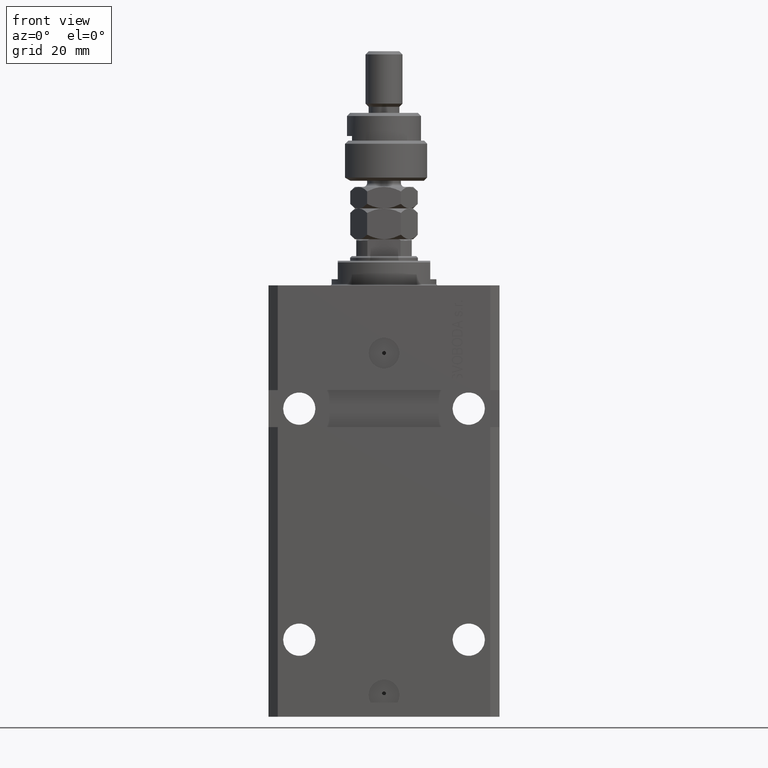
[diagram: clean part render]
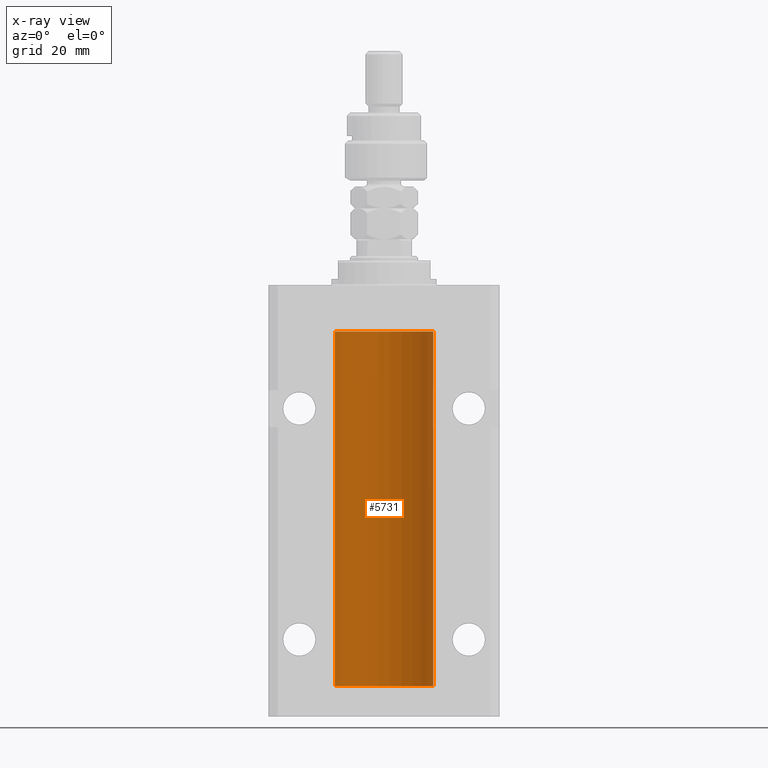
[diagram: x-ray — body ghosted, one internal face saturated and labeled with its STEP entity id]
A machine part, front view, then the same camera in x-ray: the body is ghosted and one INTERNAL B-rep face — a face not visible from any outside direction — is saturated and labeled: STEP entity #5731.
In plain terms, the highlighted cylindrical surface (partial cylindrical patch) has radius 16 mm, axis along (0, 0, 1).
Its self-contained STEP definition (entity closure, byte-faithful):
#670 = EDGE_CURVE ( 'NONE', #8681, #39952, #28581, .T. ) ;
#1472 = CARTESIAN_POINT ( 'NONE',  ( -15.98779057735153941, 0.6249419637998100407, -21.83670145863507273 ) ) ;
#1968 = CARTESIAN_POINT ( 'NONE',  ( -16.00000000000000000, 0.1631714642025800244, -22.62499999999985789 ) ) ;
#2220 = CARTESIAN_POINT ( 'NONE',  ( -15.99228023727724413, 0.5003781296993413674, -22.38347829554236057 ) ) ;
#2885 = CARTESIAN_POINT ( 'NONE',  ( -15.99228023727723702, 0.5003781296993445871, -128.3834782955424032 ) ) ;
#3008 = FACE_OUTER_BOUND ( 'NONE', #37050, .T. ) ;
#5253 = DIRECTION ( 'NONE',  ( -0.000000000000000000, -0.000000000000000000, 1.000000000000000000 ) ) ;
#5731 = ADVANCED_FACE ( 'NONE', ( #3008 ), #43566, .F. ) ;
#5789 = CARTESIAN_POINT ( 'NONE',  ( -15.99548640841683067, 0.3843705577988847377, -21.50046628527008608 ) ) ;
#6029 = CARTESIAN_POINT ( 'NONE',  ( -15.99707730059171240, 0.3150375992092407373, -21.45402333202571654 ) ) ;
#6205 = DIRECTION ( 'NONE',  ( -0.000000000000000000, -0.000000000000000000, 1.000000000000000000 ) ) ;
#6241 = ORIENTED_EDGE ( 'NONE', *, *, #21379, .T. ) ;
#6279 = CARTESIAN_POINT ( 'NONE',  ( -16.00000000000000711, 0.08259886010189904093, -21.37500000000000000 ) ) ;
#6322 = AXIS2_PLACEMENT_3D ( 'NONE', #10969, #13837, #29309 ) ;
#6402 = VERTEX_POINT ( 'NONE', #9509 ) ;
#7376 = ORIENTED_EDGE ( 'NONE', *, *, #670, .T. ) ;
#8055 = LINE ( 'NONE', #31898, #10241 ) ;
#8396 = ORIENTED_EDGE ( 'NONE', *, *, #12604, .F. ) ;
#8549 = CARTESIAN_POINT ( 'NONE',  ( -16.00000000000000000, 1.959434878635765131E-15, -130.0999999999999943 ) ) ;
#8681 = VERTEX_POINT ( 'NONE', #49082 ) ;
#9340 = CARTESIAN_POINT ( 'NONE',  ( -16.00000000000000000, 1.643679961284177128E-16, -21.37499999999999645 ) ) ;
#9509 = CARTESIAN_POINT ( 'NONE',  ( 16.00000000000000000, 0.000000000000000000, -130.0999999999999943 ) ) ;
#10241 = VECTOR ( 'NONE', #43063, 1000.000000000000000 ) ;
#10252 = CARTESIAN_POINT ( 'NONE',  ( -15.98844267028591482, 0.6088369347963276113, -128.1632473502432674 ) ) ;
#10628 = VERTEX_POINT ( 'NONE', #8549 ) ;
#10969 = CARTESIAN_POINT ( 'NONE',  ( 0.000000000000000000, 0.000000000000000000, -130.0999999999999943 ) ) ;
#11655 = ORIENTED_EDGE ( 'NONE', *, *, #32061, .F. ) ;
#12604 = EDGE_CURVE ( 'NONE', #22892, #39952, #20129, .T. ) ;
#13400 = CARTESIAN_POINT ( 'NONE',  ( -15.99070426498503217, 0.5462220647145618058, -22.31460064614143590 ) ) ;
#13837 = DIRECTION ( 'NONE',  ( 0.000000000000000000, 0.000000000000000000, 1.000000000000000000 ) ) ;
#14290 = ORIENTED_EDGE ( 'NONE', *, *, #23144, .F. ) ;
#14308 = CARTESIAN_POINT ( 'NONE',  ( -15.99070426498503217, 0.5462220647145575869, -128.3146006461414288 ) ) ;
#14566 = CARTESIAN_POINT ( 'NONE',  ( -15.99707730059171240, 0.3150375992092247501, -127.4540233320256561 ) ) ;
#14889 = VECTOR ( 'NONE', #28458, 1000.000000000000000 ) ;
#16707 = CARTESIAN_POINT ( 'NONE',  ( -15.98778717651346071, 0.6250289588122140971, -22.08131585687052478 ) ) ;
#17207 = CARTESIAN_POINT ( 'NONE',  ( -15.99070653155267685, 0.5573233280232986475, -21.67348148680506625 ) ) ;
#17695 = CARTESIAN_POINT ( 'NONE',  ( -15.99934216141748244, 0.1636497843296417787, -21.39126528029306229 ) ) ;
#18107 = CARTESIAN_POINT ( 'NONE',  ( -15.98778717651346604, 0.6250289588122058815, -128.0813158568705603 ) ) ;
#18364 = CARTESIAN_POINT ( 'NONE',  ( -16.00000000000013145, 3.685127464164956467E-13, -128.6250000000034390 ) ) ;
#20129 = LINE ( 'NONE', #24184, #48373 ) ;
#20164 = DIRECTION ( 'NONE',  ( 0.000000000000000000, 0.000000000000000000, 1.000000000000000000 ) ) ;
#20241 = VERTEX_POINT ( 'NONE', #43240 ) ;
#20435 = EDGE_CURVE ( 'NONE', #25460, #32603, #41831, .T. ) ;
#20599 = CARTESIAN_POINT ( 'NONE',  ( -16.00000000000000000, 1.959434878635765131E-15, -130.0999999999999943 ) ) ;
#21261 = CARTESIAN_POINT ( 'NONE',  ( -16.00000000000013145, 3.685127038166941002E-13, -22.62500000000341771 ) ) ;
#21379 = EDGE_CURVE ( 'NONE', #6402, #8681, #45000, .T. ) ;
#21723 = ORIENTED_EDGE ( 'NONE', *, *, #35351, .F. ) ;
#21758 = CARTESIAN_POINT ( 'NONE',  ( -15.99711699979842017, 0.3253759916140657737, -22.55856151623175521 ) ) ;
#21933 = CARTESIAN_POINT ( 'NONE',  ( 16.00000000000000000, 0.000000000000000000, -130.0999999999999943 ) ) ;
#22175 = CARTESIAN_POINT ( 'NONE',  ( -16.00000000000000000, -1.314639473218082033E-14, -127.3749999999999858 ) ) ;
#22892 = VERTEX_POINT ( 'NONE', #45226 ) ;
#23144 = EDGE_CURVE ( 'NONE', #10628, #32603, #28707, .T. ) ;
#24184 = CARTESIAN_POINT ( 'NONE',  ( -16.00000000000000000, 1.959434878635765131E-15, -130.0999999999999943 ) ) ;
#24217 = DIRECTION ( 'NONE',  ( 1.000000000000000000, 0.000000000000000000, 0.000000000000000000 ) ) ;
#25460 = VERTEX_POINT ( 'NONE', #41032 ) ;
#25497 = B_SPLINE_CURVE_WITH_KNOTS ( 'NONE', 3,
 ( #9340, #6279, #17695, #6029, #5789, #17207, #1472, #16707, #36217, #13400, #2220, #21758, #1968, #21261 ),
 .UNSPECIFIED., .F., .F.,
 ( 4, 2, 2, 2, 2, 2, 4 ),
 ( 1.597328219370744179E-19, 0.0002442776652680942405, 0.0004885553305361882643, 0.0009771106610723839011, 0.001221388326340481665, 0.001465665991608579430, 0.001954221322144767369 ),
 .UNSPECIFIED. ) ;
#27319 = CARTESIAN_POINT ( 'NONE',  ( 0.000000000000000000, 0.000000000000000000, -130.0999999999999943 ) ) ;
#27728 = ORIENTED_EDGE ( 'NONE', *, *, #20435, .T. ) ;
#28458 = DIRECTION ( 'NONE',  ( -0.000000000000000000, -0.000000000000000000, 1.000000000000000000 ) ) ;
#28581 = CIRCLE ( 'NONE', #30213, 16.00000000000000000 ) ;
#28707 = LINE ( 'NONE', #20599, #14889 ) ;
#29309 = DIRECTION ( 'NONE',  ( 1.000000000000000000, 0.000000000000000000, 0.000000000000000000 ) ) ;
#29442 = VECTOR ( 'NONE', #6205, 1000.000000000000000 ) ;
#30213 = AXIS2_PLACEMENT_3D ( 'NONE', #34870, #20164, #24217 ) ;
#30531 = CARTESIAN_POINT ( 'NONE',  ( -15.99070653155267685, 0.5573233280232815501, -127.6734814868050449 ) ) ;
#31898 = CARTESIAN_POINT ( 'NONE',  ( -16.00000000000000000, 1.959434878635765131E-15, -130.0999999999999943 ) ) ;
#32061 = EDGE_CURVE ( 'NONE', #25460, #20241, #8055, .T. ) ;
#32470 = CARTESIAN_POINT ( 'NONE',  ( -16.00000000000013145, 3.685127464164956467E-13, -128.6250000000034390 ) ) ;
#32603 = VERTEX_POINT ( 'NONE', #32470 ) ;
#32640 = CARTESIAN_POINT ( 'NONE',  ( -16.00000000000000000, 1.959434878635765131E-15, -15.00000000000000000 ) ) ;
#34320 = CARTESIAN_POINT ( 'NONE',  ( -15.99934216141748244, 0.1636497843296232380, -127.3912652802930694 ) ) ;
#34870 = CARTESIAN_POINT ( 'NONE',  ( 0.000000000000000000, 0.000000000000000000, -15.00000000000000000 ) ) ;
#35170 = DIRECTION ( 'NONE',  ( 1.000000000000000000, 0.000000000000000000, 0.000000000000000000 ) ) ;
#35351 = EDGE_CURVE ( 'NONE', #6402, #10628, #38714, .T. ) ;
#35791 = EDGE_CURVE ( 'NONE', #22892, #20241, #25497, .T. ) ;
#36084 = ORIENTED_EDGE ( 'NONE', *, *, #35791, .T. ) ;
#36217 = CARTESIAN_POINT ( 'NONE',  ( -15.98844267028591482, 0.6088369347963316081, -22.16324735024328518 ) ) ;
#37050 = EDGE_LOOP ( 'NONE', ( #14290, #21723, #6241, #7376, #8396, #36084, #11655, #27728 ) ) ;
#37625 = CARTESIAN_POINT ( 'NONE',  ( -15.98779057735154296, 0.6249419637998029353, -127.8367014586350763 ) ) ;
#38714 = CIRCLE ( 'NONE', #6322, 16.00000000000000000 ) ;
#39952 = VERTEX_POINT ( 'NONE', #32640 ) ;
#41032 = CARTESIAN_POINT ( 'NONE',  ( -16.00000000000000000, -1.314639473218082033E-14, -127.3749999999999858 ) ) ;
#41199 = CARTESIAN_POINT ( 'NONE',  ( -15.99999999999999289, 0.1631714642025817730, -128.6249999999999147 ) ) ;
#41456 = CARTESIAN_POINT ( 'NONE',  ( -16.00000000000000355, 0.08259886010188438599, -127.3749999999999574 ) ) ;
#41831 = B_SPLINE_CURVE_WITH_KNOTS ( 'NONE', 3,
 ( #22175, #41456, #34320, #14566, #49799, #30531, #37625, #18107, #10252, #14308, #2885, #45989, #41199, #18364 ),
 .UNSPECIFIED., .F., .F.,
 ( 4, 2, 2, 2, 2, 2, 4 ),
 ( 2.457764170500729066E-18, 0.0002442776652680811759, 0.0004885553305361599666, 0.0009771106610723173311, 0.001221388326340437647, 0.001465665991608557962, 0.001954221322144799027 ),
 .UNSPECIFIED. ) ;
#43063 = DIRECTION ( 'NONE',  ( -0.000000000000000000, -0.000000000000000000, 1.000000000000000000 ) ) ;
#43210 = DIRECTION ( 'NONE',  ( -0.000000000000000000, -0.000000000000000000, 1.000000000000000000 ) ) ;
#43240 = CARTESIAN_POINT ( 'NONE',  ( -16.00000000000013145, 3.685127038166941002E-13, -22.62500000000341771 ) ) ;
#43566 = CYLINDRICAL_SURFACE ( 'NONE', #49067, 16.00000000000000000 ) ;
#45000 = LINE ( 'NONE', #21933, #29442 ) ;
#45226 = CARTESIAN_POINT ( 'NONE',  ( -16.00000000000000000, 1.643679961284177128E-16, -21.37499999999999645 ) ) ;
#45989 = CARTESIAN_POINT ( 'NONE',  ( -15.99711699979841661, 0.3253759916140733233, -128.5585615162317765 ) ) ;
#48373 = VECTOR ( 'NONE', #43210, 1000.000000000000000 ) ;
#49067 = AXIS2_PLACEMENT_3D ( 'NONE', #27319, #5253, #35170 ) ;
#49082 = CARTESIAN_POINT ( 'NONE',  ( 16.00000000000000000, 0.000000000000000000, -15.00000000000000000 ) ) ;
#49799 = CARTESIAN_POINT ( 'NONE',  ( -15.99548640841682712, 0.3843705577988635880, -127.5004662852700932 ) ) ;